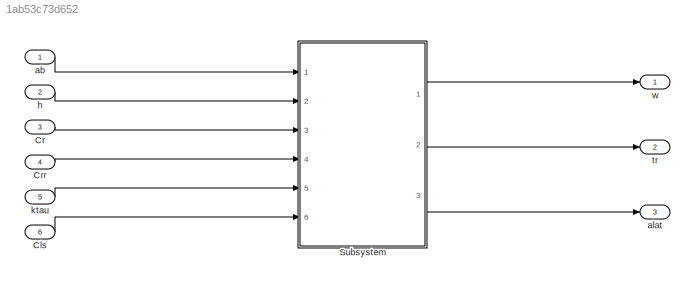
MODEL slx_1ab53c73d652
KIND model
CONFIG AbsTol = auto
CONFIG EnableMultiTasking = off
CONFIG FixedStep = auto
CONFIG InitFcn = m = 1452; % Mass of Vehicle (kg)\nJ = 2200; % Moment of Inertia (kg-m^2)\nJx = 510; % Roll Moment of Inertia (kg-m^2)\nL = 2.7; % Wheel base of Vehicle (m)\nvx = 28; % Longitudinal Velocity (m/s)== 100kph\nCf = 50000; % Conering Coefficient of Front Tire (N/rad)\ntmax = 10;\ndt = 0.001;\n \n
CONFIG MaxStep = dt
CONFIG MinStep = auto
CONFIG RelTol = 1e-3
CONFIG SampleTimeConstraint = Unconstrained
CONFIG Solver = VariableStepAuto
CONFIG SolverName = VariableStepAuto
CONFIG StartTime = 0.0
CONFIG StopTime = tmax
BLOCK [Inport] Cls
  IconDisplay = Port number
  Port = 6
BLOCK [Inport] Cr
  IconDisplay = Port number
  Port = 3
BLOCK [Inport] Crr
  IconDisplay = Port number
  Port = 4
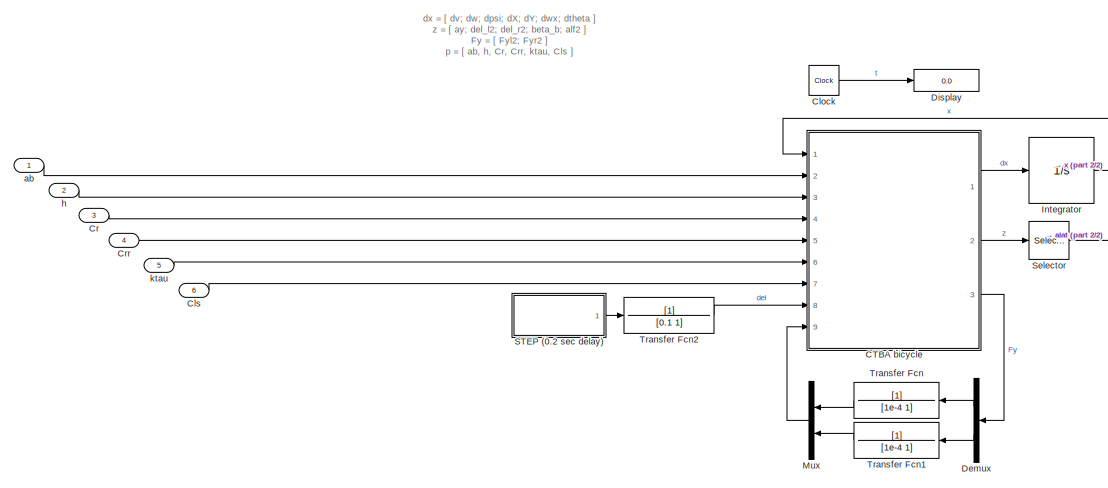
[diagram: Subsystem - part 1/2, center side, full height]
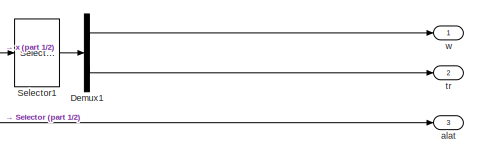
[diagram: Subsystem - part 2/2, middle right region]
BLOCK [SubSystem] Subsystem
  Ports = [6, 3]
  RequestExecContextInheritance = off
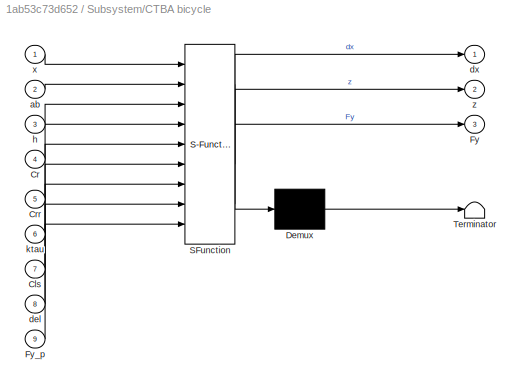
BLOCK [SubSystem] Subsystem/CTBA bicycle
  ErrorFcn = Stateflow.Translate.translate
  PermitHierarchicalResolution = ExplicitOnly
  Ports = [9, 3]
  RequestExecContextInheritance = off
  SFBlockType = MATLAB Function
  TreatAsAtomicUnit = on
BLOCK [Demux] Subsystem/CTBA bicycle/ Demux 
  Outputs = 1
  Ports = [1, 1]
BLOCK [S-Function] Subsystem/CTBA bicycle/ SFunction 
  EnableBusSupport = on
  FunctionName = sf_sfun
  Parameters = Cf,J,Jx,L,m,vx
  PortCounts = [9 4]
  Ports = [9, 4]
  SFcnIsStateOwnerBlock = off
  SFunctionDeploymentMode = off
  Tag = Stateflow S-Function bicyclops 2
BLOCK [Terminator] Subsystem/CTBA bicycle/ Terminator 
BLOCK [Inport] Subsystem/CTBA bicycle/Cls
  IconDisplay = Port number
  Port = 7
BLOCK [Inport] Subsystem/CTBA bicycle/Cr
  IconDisplay = Port number
  Port = 4
BLOCK [Inport] Subsystem/CTBA bicycle/Crr
  IconDisplay = Port number
  Port = 5
BLOCK [Outport] Subsystem/CTBA bicycle/Fy
  IconDisplay = Port number
  Port = 3
BLOCK [Inport] Subsystem/CTBA bicycle/Fy_p
  IconDisplay = Port number
  Port = 9
BLOCK [Inport] Subsystem/CTBA bicycle/ab
  IconDisplay = Port number
  Port = 2
BLOCK [Inport] Subsystem/CTBA bicycle/del
  IconDisplay = Port number
  Port = 8
BLOCK [Outport] Subsystem/CTBA bicycle/dx
  IconDisplay = Port number
BLOCK [Inport] Subsystem/CTBA bicycle/h
  IconDisplay = Port number
  Port = 3
BLOCK [Inport] Subsystem/CTBA bicycle/ktau
  IconDisplay = Port number
  Port = 6
BLOCK [Inport] Subsystem/CTBA bicycle/x
  IconDisplay = Port number
BLOCK [Outport] Subsystem/CTBA bicycle/z
  IconDisplay = Port number
  Port = 2
BLOCK [Clock] Subsystem/Clock
BLOCK [Inport] Subsystem/Cls
  IconDisplay = Port number
  Port = 6
BLOCK [Inport] Subsystem/Cr
  IconDisplay = Port number
  Port = 3
BLOCK [Inport] Subsystem/Crr
  IconDisplay = Port number
  Port = 4
BLOCK [Demux] Subsystem/Demux
  DisplayOption = bar
  Outputs = 2
  Ports = [1, 2]
BLOCK [Demux] Subsystem/Demux1
  DisplayOption = bar
  Outputs = 2
  Ports = [1, 2]
BLOCK [Display] Subsystem/Display
  Ports = [1]
BLOCK [Integrator] Subsystem/Integrator
  InitialCondition = init
  Ports = [1, 1]
BLOCK [Mux] Subsystem/Mux
  DisplayOption = bar
  Inputs = 2
  Ports = [2, 1]
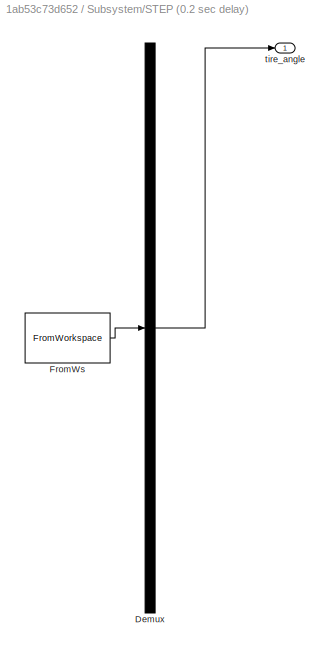
BLOCK [SubSystem] Subsystem/STEP (0.2 sec delay)
  ClipboardFcn = sigbuilder_block('clipboard');
  CloseFcn = sigbuilder_block('close');
  ContinueFcn = sigbuilder_block('continue');
  CopyFcn = sigbuilder_block('copy');
  DeleteFcn = sigbuilder_block('delete');
  LoadFcn = sigbuilder_block('load');
  MaskHideContents = on
  ModelCloseFcn = sigbuilder_block('modelClose');
  NameChangeFcn = sigbuilder_block('namechange');
  OpenFcn = sigbuilder_block('open',[567 140.25 550.5 399.75 ]);
  PauseFcn = sigbuilder_block('pause');
  Ports = [0, 1]
  PreSaveFcn = sigbuilder_block('preSave');
  RequestExecContextInheritance = off
  StartFcn = sigbuilder_block('start');
  StopFcn = sigbuilder_block('stop');
  Tag = STV Subsys
BLOCK [Demux] Subsystem/STEP (0.2 sec delay)/Demux
  Outputs = 1
  Ports = [1, 1]
  Tag = STV Demux
BLOCK [FromWorkspace] Subsystem/STEP (0.2 sec delay)/FromWs
  SampleTime = 0
  Tag = STV FromWs
  VariableName = tuvar
  ZeroCross = on
BLOCK [Outport] Subsystem/STEP (0.2 sec delay)/tire_angle
  IconDisplay = Port number
  Tag = STV Outport
BLOCK [Selector] Subsystem/Selector
  IndexOptions = Index vector (dialog)
  Indices = 1
  InputPortWidth = 5
  OutputSizes = 1
  Ports = [1, 1]
BLOCK [Selector] Subsystem/Selector1
  IndexOptions = Index vector (dialog)
  Indices = [2 7]
  InputPortWidth = 7
  OutputSizes = 1
  Ports = [1, 1]
BLOCK [TransferFcn] Subsystem/Transfer Fcn
  Denominator = [1e-4 1]
BLOCK [TransferFcn] Subsystem/Transfer Fcn1
  Denominator = [1e-4 1]
BLOCK [TransferFcn] Subsystem/Transfer Fcn2
  Denominator = [0.1 1]
BLOCK [Inport] Subsystem/ab
  IconDisplay = Port number
BLOCK [Outport] Subsystem/alat
  IconDisplay = Port number
  Port = 3
BLOCK [Inport] Subsystem/h
  IconDisplay = Port number
  Port = 2
BLOCK [Inport] Subsystem/ktau
  IconDisplay = Port number
  Port = 5
BLOCK [Outport] Subsystem/tr
  IconDisplay = Port number
  Port = 2
BLOCK [Outport] Subsystem/w
  IconDisplay = Port number
BLOCK [Inport] ab
  IconDisplay = Port number
BLOCK [Outport] alat
  IconDisplay = Port number
  Port = 3
BLOCK [Inport] h
  IconDisplay = Port number
  Port = 2
BLOCK [Inport] ktau
  IconDisplay = Port number
  Port = 5
BLOCK [Outport] tr
  IconDisplay = Port number
  Port = 2
BLOCK [Outport] w
  IconDisplay = Port number
ANNOTATION Subsystem: dx = [ dv; dw; dpsi; dX; dY; dwx; dtheta ] z = [ ay; del_l2; del_r2; beta_b; alf2 ] Fy = [ Fyl2; Fyr2 ] p = [ ab, h, Cr, Crr, ktau, Cls ]
LINE Cls:1 -> Subsystem:6
LINE Cr:1 -> Subsystem:3
LINE Crr:1 -> Subsystem:4
LINE Subsystem/CTBA bicycle:1 -> Subsystem/Integrator:1
LINE Subsystem/CTBA bicycle:2 -> Subsystem/Selector:1
LINE Subsystem/CTBA bicycle:3 -> Subsystem/Demux:1
LINE Subsystem/Clock:1 -> Subsystem/Display:1
LINE Subsystem/Cls:1 -> Subsystem/CTBA bicycle:7
LINE Subsystem/Cr:1 -> Subsystem/CTBA bicycle:4
LINE Subsystem/Crr:1 -> Subsystem/CTBA bicycle:5
LINE Subsystem/Demux1:1 -> Subsystem/w:1
LINE Subsystem/Demux1:2 -> Subsystem/tr:1
LINE Subsystem/Demux:1 -> Subsystem/Transfer Fcn:1
LINE Subsystem/Demux:2 -> Subsystem/Transfer Fcn1:1
NET Subsystem/Integrator:1 -> Subsystem/CTBA bicycle:1, Subsystem/Selector1:1
LINE Subsystem/Mux:1 -> Subsystem/CTBA bicycle:9
LINE Subsystem/STEP (0.2 sec delay):1 -> Subsystem/Transfer Fcn2:1
LINE Subsystem/Selector1:1 -> Subsystem/Demux1:1
LINE Subsystem/Selector:1 -> Subsystem/alat:1
LINE Subsystem/Transfer Fcn1:1 -> Subsystem/Mux:2
LINE Subsystem/Transfer Fcn2:1 -> Subsystem/CTBA bicycle:8
LINE Subsystem/Transfer Fcn:1 -> Subsystem/Mux:1
LINE Subsystem/ab:1 -> Subsystem/CTBA bicycle:2
LINE Subsystem/h:1 -> Subsystem/CTBA bicycle:3
LINE Subsystem/ktau:1 -> Subsystem/CTBA bicycle:6
LINE Subsystem:1 -> w:1
LINE Subsystem:2 -> tr:1
LINE Subsystem:3 -> alat:1
LINE ab:1 -> Subsystem:1
LINE h:1 -> Subsystem:2
LINE ktau:1 -> Subsystem:5
note: NET lines group one-source signal fan-out (src -> all destinations, sorted); 1:1 wires keep LINE
CHART Subsystem/CTBA bicycle states=1 transitions=1
  STATE_LABEL 'eML_blk_kernel()'
  STATE_LABEL 'SCRIPT:\nfunction [dx,z,Fy] = ctbabike(x, ab, h, Cr, Crr, ktau, Cls, del, Fy_p, ...\n    m, J, Jx, Cf, vx, L)\n\n% m, J, Jx, a, b, h, Cf, Cr, Crr, ktau, Cls, vx\n% p to change: ab, h, Cr, Crr, ktau, Cls\nb = L/(1 + ab);\na = L - b;\n% Unpack states\nv = x(1);\nw = x(2);\npsi = x(3);\n% X = x(4);\n% Y = x(5);\nwx = x(6);\ntheta = x(7);\n% Unpack previous tire forces\nFyl2_p = Fy_p(1);\nFyr2_p = Fy_p(2);\n\n% Rear Stee...<+1330ch>'
